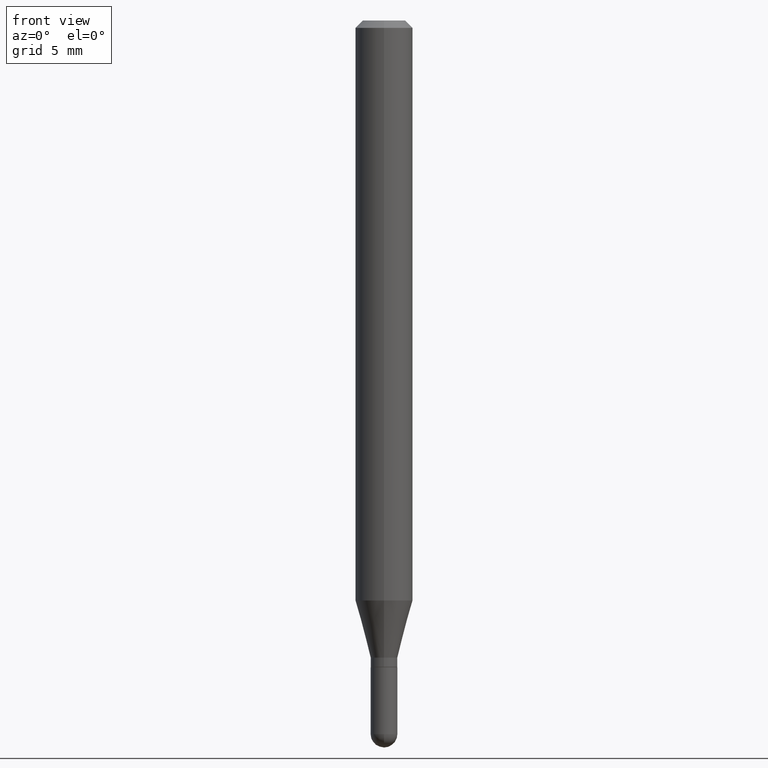
[diagram: clean part render]
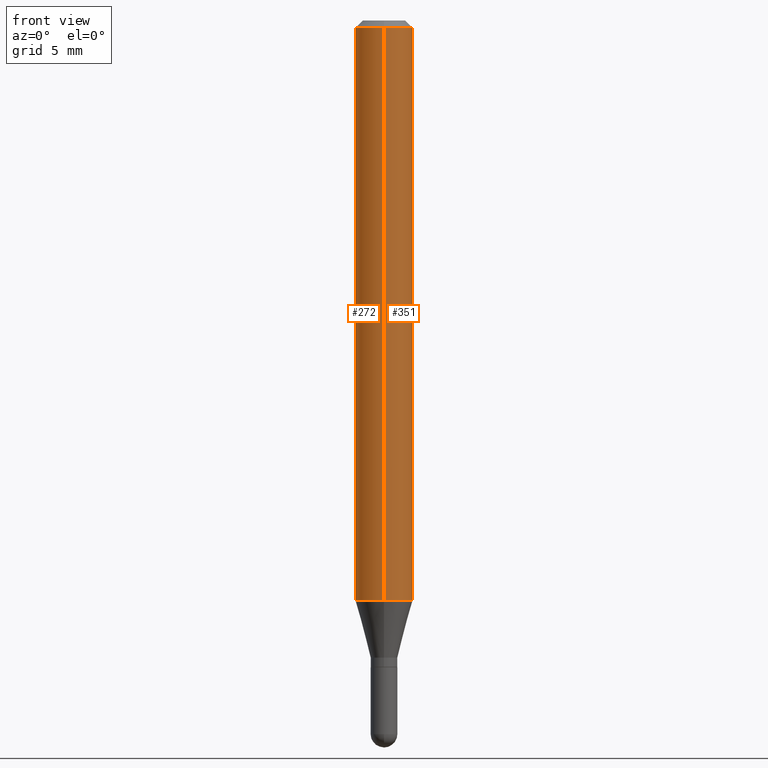
[diagram: same view with one multi-face feature highlighted, each face labeled with its STEP entity id]
A machine part, front view. The highlighted faces form ONE feature: a constant-radius fillet chain: 2 tangent blend faces with common blend radius 1.4999 mm. The faces share edges in the B-rep.
Their STEP definitions:
[1] entity #351 (Cylinder):
#4 = DIRECTION ( 'NONE',  ( -6.982962677686265922E-15, -1.000000000000000000, 3.491500263023452586E-15 ) ) ;
#8 = ORIENTED_EDGE ( 'NONE', *, *, #62, .F. ) ;
#26 = AXIS2_PLACEMENT_3D ( 'NONE', #426, #385, #425 ) ;
#28 = VERTEX_POINT ( 'NONE', #427 ) ;
#43 = FACE_OUTER_BOUND ( 'NONE', #401, .T. ) ;
#47 = ORIENTED_EDGE ( 'NONE', *, *, #217, .F. ) ;
#58 = ORIENTED_EDGE ( 'NONE', *, *, #224, .T. ) ;
#62 = EDGE_CURVE ( 'NONE', #28, #444, #67, .T. ) ;
#67 = CIRCLE ( 'NONE', #492, 0.05904999999999999832 ) ;
#118 = DIRECTION ( 'NONE',  ( -2.445455591500657940E-29, 3.491500263023451797E-15, 1.000000000000000000 ) ) ;
#158 = LINE ( 'NONE', #318, #361 ) ;
#182 = CARTESIAN_POINT ( 'NONE',  ( 0.000000000000000000, 0.000000000000000000, 0.000000000000000000 ) ) ;
#217 = EDGE_CURVE ( 'NONE', #409, #28, #158, .T. ) ;
#219 = DIRECTION ( 'NONE',  ( -2.445455591500657940E-29, 3.491500263023452192E-15, 1.000000000000000000 ) ) ;
#224 = EDGE_CURVE ( 'NONE', #409, #441, #482, .T. ) ;
#240 = CARTESIAN_POINT ( 'NONE',  ( 4.195754854663390985E-16, 0.05904999999999999832, -2.061730905315348637E-16 ) ) ;
#251 = DIRECTION ( 'NONE',  ( -6.982962677686265922E-15, -1.000000000000000000, 3.505890868245046092E-15 ) ) ;
#253 = AXIS2_PLACEMENT_3D ( 'NONE', #182, #219, #4 ) ;
#273 = CARTESIAN_POINT ( 'NONE',  ( 4.195754854663679906E-16, 0.05904999999999580029, -1.193540399561579424 ) ) ;
#284 = CARTESIAN_POINT ( 'NONE',  ( 3.668183387250992270E-31, -5.237250394535186299E-17, -0.01500000000000002373 ) ) ;
#297 = EDGE_CURVE ( 'NONE', #441, #444, #506, .T. ) ;
#299 = ORIENTED_EDGE ( 'NONE', *, *, #297, .T. ) ;
#308 = CARTESIAN_POINT ( 'NONE',  ( 4.195754854663684343E-16, 0.05904999999999994975, -0.01500000000000023016 ) ) ;
#310 = DIRECTION ( 'NONE',  ( -2.445455591500657940E-29, 3.491500263023451797E-15, 1.000000000000000000 ) ) ;
#318 = CARTESIAN_POINT ( 'NONE',  ( -4.123439461173739834E-16, -0.05904999999999999832, 2.061730905315348637E-16 ) ) ;
#323 = VECTOR ( 'NONE', #310, 39.37007874015748143 ) ;
#351 = ADVANCED_FACE ( 'NONE', ( #43 ), #362, .T. ) ;
#361 = VECTOR ( 'NONE', #118, 39.37007874015748143 ) ;
#362 = CYLINDRICAL_SURFACE ( 'NONE', #253, 0.05904999999999999832 ) ;
#385 = DIRECTION ( 'NONE',  ( -2.445455591500657940E-29, 3.491500263023452192E-15, 1.000000000000000000 ) ) ;
#390 = DIRECTION ( 'NONE',  ( -2.445455591500657940E-29, 3.491500263023452192E-15, 1.000000000000000000 ) ) ;
#401 = EDGE_LOOP ( 'NONE', ( #58, #299, #8, #47 ) ) ;
#409 = VERTEX_POINT ( 'NONE', #438 ) ;
#425 = DIRECTION ( 'NONE',  ( -6.982962677686265922E-15, -1.000000000000000000, 4.626330217890369336E-15 ) ) ;
#426 = CARTESIAN_POINT ( 'NONE',  ( 2.918750043789793122E-29, -4.167246618998369739E-15, -1.193540399561579202 ) ) ;
#427 = CARTESIAN_POINT ( 'NONE',  ( -4.123439461173736383E-16, -0.05905000000000005383, -0.01499999999999981730 ) ) ;
#438 = CARTESIAN_POINT ( 'NONE',  ( -4.123439461173449928E-16, -0.05905000000000418248, -1.193540399561578758 ) ) ;
#441 = VERTEX_POINT ( 'NONE', #273 ) ;
#444 = VERTEX_POINT ( 'NONE', #308 ) ;
#482 = CIRCLE ( 'NONE', #26, 0.05904999999999999832 ) ;
#492 = AXIS2_PLACEMENT_3D ( 'NONE', #284, #390, #251 ) ;
#506 = LINE ( 'NONE', #240, #323 ) ;
[2] entity #272 (Cylinder):
#28 = VERTEX_POINT ( 'NONE', #427 ) ;
#56 = AXIS2_PLACEMENT_3D ( 'NONE', #327, #470, #465 ) ;
#65 = ORIENTED_EDGE ( 'NONE', *, *, #116, .F. ) ;
#116 = EDGE_CURVE ( 'NONE', #444, #28, #344, .T. ) ;
#118 = DIRECTION ( 'NONE',  ( -2.445455591500657940E-29, 3.491500263023451797E-15, 1.000000000000000000 ) ) ;
#131 = CARTESIAN_POINT ( 'NONE',  ( 2.918750043789793122E-29, -4.167246618998369739E-15, -1.193540399561579202 ) ) ;
#132 = DIRECTION ( 'NONE',  ( -6.982962677686265922E-15, -1.000000000000000000, 4.626330217890369336E-15 ) ) ;
#158 = LINE ( 'NONE', #318, #361 ) ;
#201 = EDGE_LOOP ( 'NONE', ( #422, #489, #434, #65 ) ) ;
#214 = AXIS2_PLACEMENT_3D ( 'NONE', #131, #258, #132 ) ;
#217 = EDGE_CURVE ( 'NONE', #409, #28, #158, .T. ) ;
#223 = CIRCLE ( 'NONE', #214, 0.05904999999999999832 ) ;
#240 = CARTESIAN_POINT ( 'NONE',  ( 4.195754854663390985E-16, 0.05904999999999999832, -2.061730905315348637E-16 ) ) ;
#258 = DIRECTION ( 'NONE',  ( -2.445455591500657940E-29, 3.491500263023452192E-15, 1.000000000000000000 ) ) ;
#272 = ADVANCED_FACE ( 'NONE', ( #312 ), #496, .T. ) ;
#273 = CARTESIAN_POINT ( 'NONE',  ( 4.195754854663679906E-16, 0.05904999999999580029, -1.193540399561579424 ) ) ;
#274 = DIRECTION ( 'NONE',  ( -2.445455591500657940E-29, 3.491500263023452192E-15, 1.000000000000000000 ) ) ;
#297 = EDGE_CURVE ( 'NONE', #441, #444, #506, .T. ) ;
#308 = CARTESIAN_POINT ( 'NONE',  ( 4.195754854663684343E-16, 0.05904999999999994975, -0.01500000000000023016 ) ) ;
#309 = CARTESIAN_POINT ( 'NONE',  ( 0.000000000000000000, 0.000000000000000000, 0.000000000000000000 ) ) ;
#310 = DIRECTION ( 'NONE',  ( -2.445455591500657940E-29, 3.491500263023451797E-15, 1.000000000000000000 ) ) ;
#312 = FACE_OUTER_BOUND ( 'NONE', #201, .T. ) ;
#318 = CARTESIAN_POINT ( 'NONE',  ( -4.123439461173739834E-16, -0.05904999999999999832, 2.061730905315348637E-16 ) ) ;
#323 = VECTOR ( 'NONE', #310, 39.37007874015748143 ) ;
#327 = CARTESIAN_POINT ( 'NONE',  ( 3.668183387250992270E-31, -5.237250394535186299E-17, -0.01500000000000002373 ) ) ;
#344 = CIRCLE ( 'NONE', #56, 0.05904999999999999832 ) ;
#352 = AXIS2_PLACEMENT_3D ( 'NONE', #309, #274, #451 ) ;
#361 = VECTOR ( 'NONE', #118, 39.37007874015748143 ) ;
#370 = EDGE_CURVE ( 'NONE', #441, #409, #223, .T. ) ;
#409 = VERTEX_POINT ( 'NONE', #438 ) ;
#422 = ORIENTED_EDGE ( 'NONE', *, *, #297, .F. ) ;
#427 = CARTESIAN_POINT ( 'NONE',  ( -4.123439461173736383E-16, -0.05905000000000005383, -0.01499999999999981730 ) ) ;
#434 = ORIENTED_EDGE ( 'NONE', *, *, #217, .T. ) ;
#438 = CARTESIAN_POINT ( 'NONE',  ( -4.123439461173449928E-16, -0.05905000000000418248, -1.193540399561578758 ) ) ;
#441 = VERTEX_POINT ( 'NONE', #273 ) ;
#444 = VERTEX_POINT ( 'NONE', #308 ) ;
#451 = DIRECTION ( 'NONE',  ( -6.982962677686265922E-15, -1.000000000000000000, 3.491500263023452586E-15 ) ) ;
#465 = DIRECTION ( 'NONE',  ( -6.982962677686265922E-15, -1.000000000000000000, 3.505890868245046092E-15 ) ) ;
#470 = DIRECTION ( 'NONE',  ( -2.445455591500657940E-29, 3.491500263023452192E-15, 1.000000000000000000 ) ) ;
#489 = ORIENTED_EDGE ( 'NONE', *, *, #370, .T. ) ;
#496 = CYLINDRICAL_SURFACE ( 'NONE', #352, 0.05904999999999999832 ) ;
#506 = LINE ( 'NONE', #240, #323 ) ;